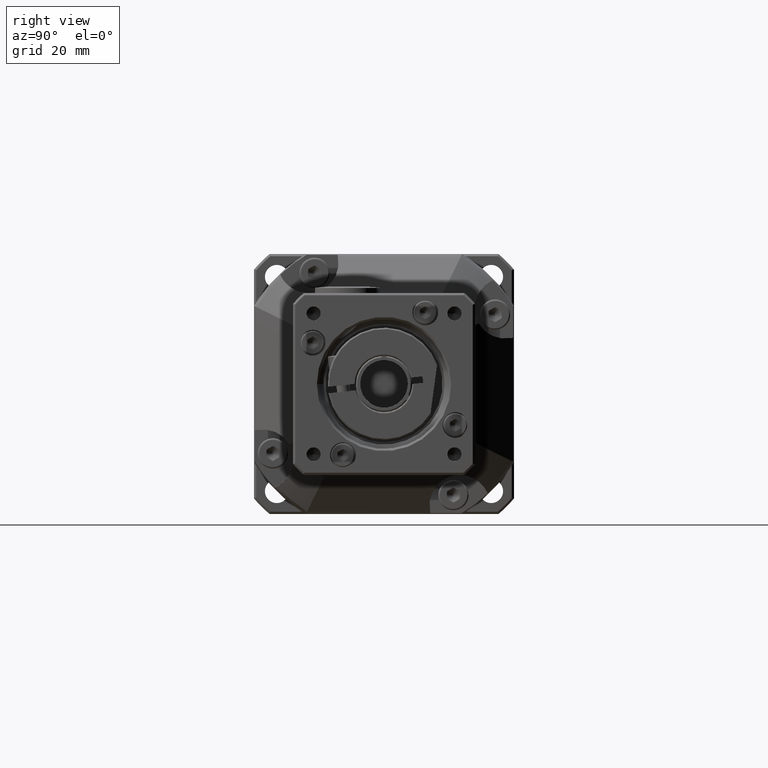
[diagram: clean part render]
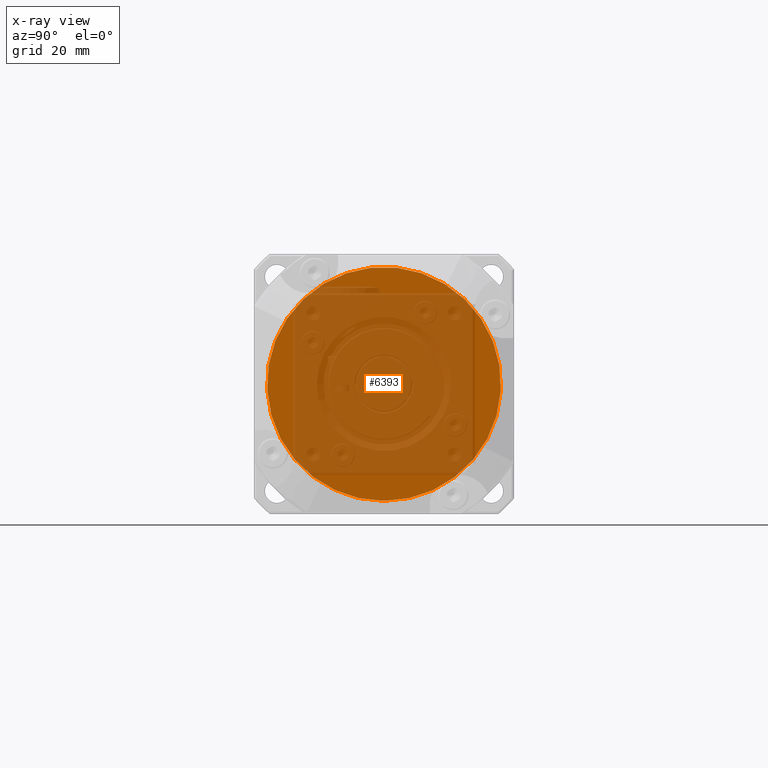
[diagram: x-ray — body ghosted, one internal face saturated and labeled with its STEP entity id]
A machine part, right view, then the same camera in x-ray: the body is ghosted and one INTERNAL B-rep face — a face not visible from any outside direction — is saturated and labeled: STEP entity #6393.
In plain terms, the highlighted planar face has unit normal (1, 0, 0).
Its self-contained STEP definition (entity closure, byte-faithful):
#1575=FACE_OUTER_BOUND('',#2018,.T.);
#2018=EDGE_LOOP('',(#4448));
#2637=CIRCLE('',#6856,27.);
#2962=VERTEX_POINT('',#9488);
#3574=EDGE_CURVE('',#2962,#2962,#2637,.T.);
#4448=ORIENTED_EDGE('',*,*,#3574,.F.);
#6183=PLANE('',#6857);
#6393=ADVANCED_FACE('',(#1575),#6183,.T.);
#6856=AXIS2_PLACEMENT_3D('',#9489,#7634,#7635);
#6857=AXIS2_PLACEMENT_3D('',#9490,#7636,#7637);
#7634=DIRECTION('center_axis',(-1.,-2.77555756156293E-17,-1.62131466612012E-16));
#7635=DIRECTION('ref_axis',(-1.62131466612012E-16,6.93889390390531E-17,
1.));
#7636=DIRECTION('center_axis',(1.,2.77555756156293E-17,1.62131466612012E-16));
#7637=DIRECTION('ref_axis',(1.62370117351429E-16,0.,-1.));
#9488=CARTESIAN_POINT('',(0.1218498129889,-50.6853481373327,-14.458971326877));
#9489=CARTESIAN_POINT('Origin',(0.121849812988895,-50.6853481373327,12.541028673123));
#9490=CARTESIAN_POINT('Origin',(0.121849812988895,-50.6853481373327,12.541028673123));